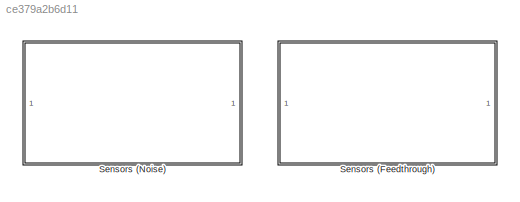
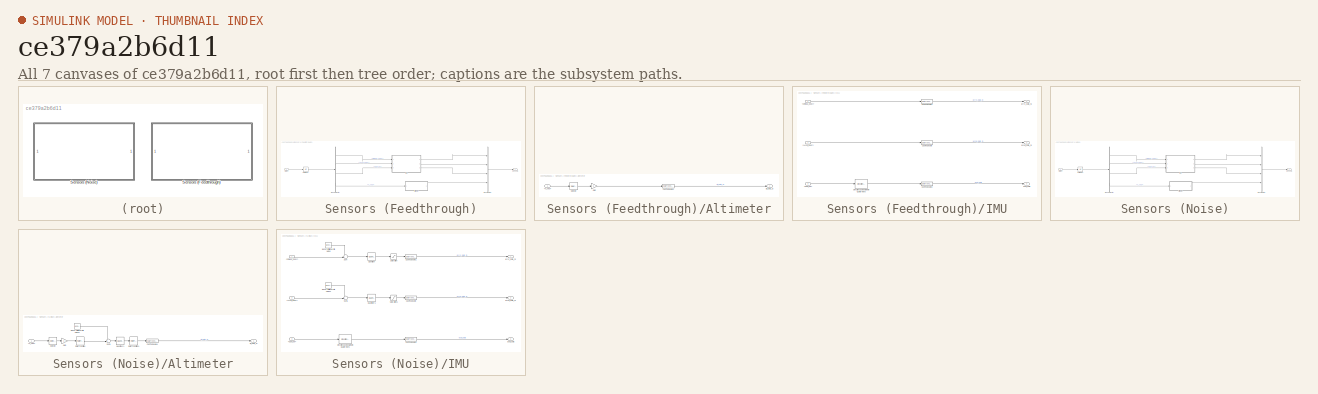
[diagram: thumbnail index - all 7 canvases of the model, root first then tree order]
MODEL slx_ce379a2b6d11
KIND library
CONFIG AbsTol = auto
CONFIG EnableMultiTasking = off
CONFIG FixedStep = auto
CONFIG MaxStep = auto
CONFIG MinStep = auto
CONFIG RelTol = 1e-3
CONFIG SampleTimeConstraint = Unconstrained
CONFIG SolverName = VariableStepAuto
CONFIG StartTime = 0.0
CONFIG StopTime = 10.0
BLOCK [SubSystem] Sensors (Feedthrough)
  Ports = [1, 1]
  RequestExecContextInheritance = off
BLOCK [SubSystem] Sensors (Feedthrough)/Altimeter
  Ports = [1, 1]
  RequestExecContextInheritance = off
BLOCK [Inport] Sensors (Feedthrough)/Altimeter/<X_ned>
BLOCK [DataTypeConversion] Sensors (Feedthrough)/Altimeter/Cast To Double4
  OutDataTypeStr = single
  RndMeth = Floor
  SaturateOnIntegerOverflow = off
BLOCK [Gain] Sensors (Feedthrough)/Altimeter/Gain
  Gain = -1
BLOCK [Selector] Sensors (Feedthrough)/Altimeter/Selector
  IndexOptions = Index vector (dialog)
  Indices = [3]
  InputPortWidth = 3
  OutputSizes = 1
  Ports = [1, 1]
BLOCK [Outport] Sensors (Feedthrough)/Altimeter/alt_data_SI
BLOCK [BusCreator] Sensors (Feedthrough)/Bus Creator
  DisplayOption = bar
  InheritFromInputs = on
  Inputs = 4
  OutDataTypeStr = Bus: sensor_data_t
  Ports = [4, 1]
BLOCK [BusSelector] Sensors (Feedthrough)/Bus Selector
  OutputSignals = Omega_body,Accel_body,DCM_be,X_ned
  Ports = [1, 4]
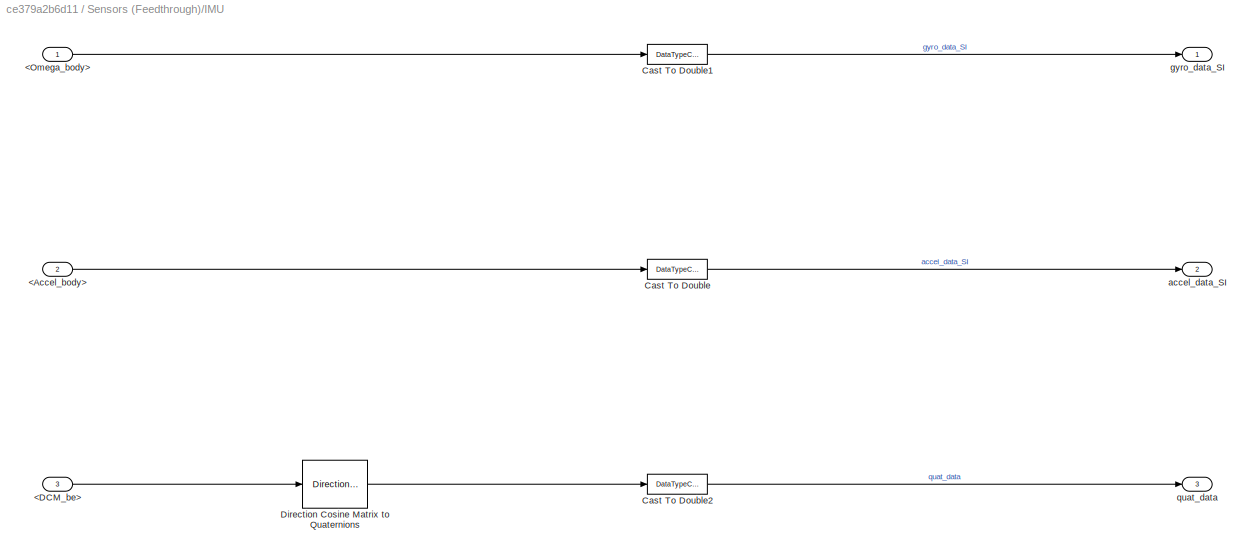
BLOCK [SubSystem] Sensors (Feedthrough)/IMU
  Ports = [3, 3]
  RequestExecContextInheritance = off
BLOCK [Inport] Sensors (Feedthrough)/IMU/<Accel_body>
  Port = 2
BLOCK [Inport] Sensors (Feedthrough)/IMU/<DCM_be>
  Port = 3
BLOCK [Inport] Sensors (Feedthrough)/IMU/<Omega_body>
BLOCK [DataTypeConversion] Sensors (Feedthrough)/IMU/Cast To Double
  OutDataTypeStr = single
  RndMeth = Floor
  SaturateOnIntegerOverflow = off
BLOCK [DataTypeConversion] Sensors (Feedthrough)/IMU/Cast To Double1
  OutDataTypeStr = single
  RndMeth = Floor
  SaturateOnIntegerOverflow = off
BLOCK [DataTypeConversion] Sensors (Feedthrough)/IMU/Cast To Double2
  OutDataTypeStr = single
  RndMeth = Floor
  SaturateOnIntegerOverflow = off
BLOCK [Reference] Sensors (Feedthrough)/IMU/Direction Cosine Matrix to Quaternions  REF=sharedtransform/Direction Cosine Matrix 
to Quaternions
  Ports = [1, 1]
  SourceBlock = sharedtransform/Direction Cosine Matrix \nto Quaternions
  SourceProductBaseCode = AE,PW,MT,UV,VE,VP
  SourceType = DCM2Quaternion
BLOCK [Outport] Sensors (Feedthrough)/IMU/accel_data_SI
  Port = 2
BLOCK [Outport] Sensors (Feedthrough)/IMU/gyro_data_SI
BLOCK [Outport] Sensors (Feedthrough)/IMU/quat_data
  Port = 3
BLOCK [Outport] Sensors (Feedthrough)/Sensors
  OutDataTypeStr = Bus: sensor_data_t
BLOCK [Inport] Sensors (Feedthrough)/States
  OutDataTypeStr = Bus: StatesBus
BLOCK [UnitDelay] Sensors (Feedthrough)/Unit Delay
  HasFrameUpgradeWarning = on
  SampleTime = -1
BLOCK [SubSystem] Sensors (Noise)
  Ports = [1, 1]
  RequestExecContextInheritance = off
BLOCK [SubSystem] Sensors (Noise)/Altimeter
  Ports = [1, 1]
  RequestExecContextInheritance = off
BLOCK [Inport] Sensors (Noise)/Altimeter/<X_ned>
BLOCK [Reference] Sensors (Noise)/Altimeter/Band-Limited White Noise1  REF=simulink/Sources/Band-Limited
White Noise
  Ports = [0, 1]
  SourceBlock = simulink/Sources/Band-Limited\nWhite Noise
  SourceProductBaseCode = SL
  SourceType = Band-Limited White Noise.
BLOCK [DataTypeConversion] Sensors (Noise)/Altimeter/Cast To Double4
  OutDataTypeStr = single
  RndMeth = Floor
  SaturateOnIntegerOverflow = off
BLOCK [Gain] Sensors (Noise)/Altimeter/Gain
  Gain = -1
BLOCK [Quantizer] Sensors (Noise)/Altimeter/Quantizer1
  LinearizeAsGain = off
  QuantizationInterval = Sensors.Altimeter.Sens
BLOCK [RateTransition] Sensors (Noise)/Altimeter/Rate Transition
  OutPortSampleTime = 1/Sensors.Altimeter.Fs
BLOCK [RateTransition] Sensors (Noise)/Altimeter/Rate Transition1
  OutPortSampleTime = Ts
BLOCK [Selector] Sensors (Noise)/Altimeter/Selector
  IndexOptions = Index vector (dialog)
  Indices = [3]
  InputPortWidth = 3
  OutputSizes = 1
  Ports = [1, 1]
BLOCK [Sum] Sensors (Noise)/Altimeter/Sum1
  Inputs = ++|
  Ports = [2, 1]
BLOCK [Outport] Sensors (Noise)/Altimeter/alt_data_SI
BLOCK [BusCreator] Sensors (Noise)/Bus Creator
  DisplayOption = bar
  InheritFromInputs = on
  Inputs = 4
  OutDataTypeStr = Bus: sensor_data_t
  Ports = [4, 1]
BLOCK [BusSelector] Sensors (Noise)/Bus Selector
  OutputSignals = Omega_body,Accel_body,DCM_be,X_ned
  Ports = [1, 4]
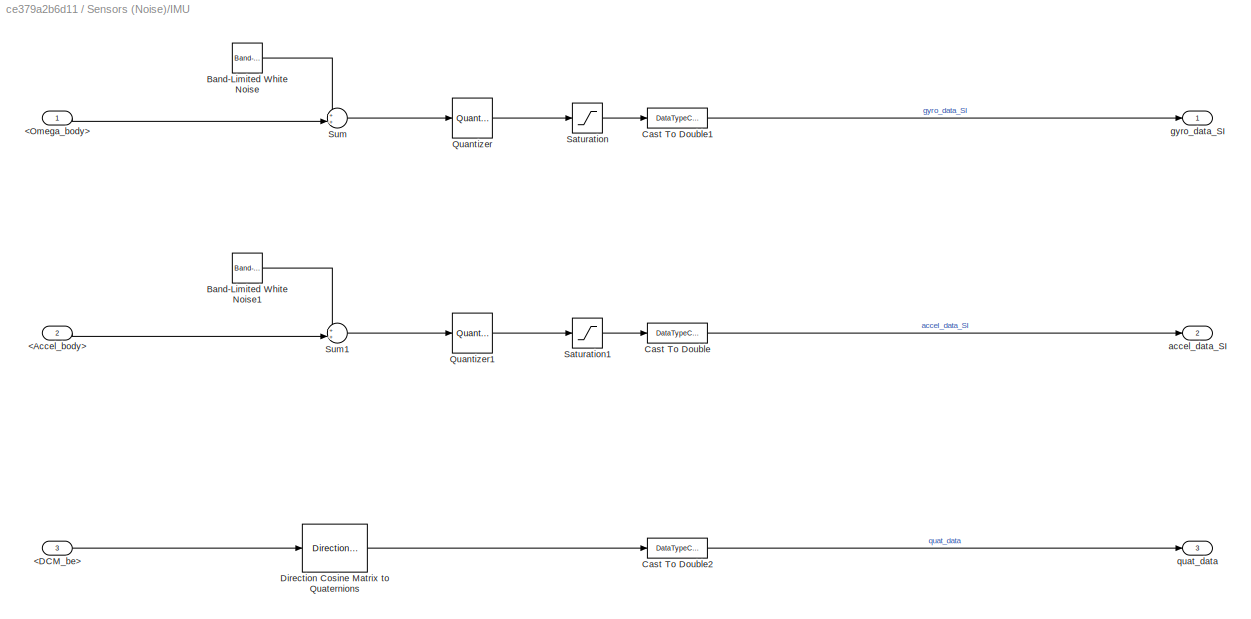
BLOCK [SubSystem] Sensors (Noise)/IMU
  Ports = [3, 3]
  RequestExecContextInheritance = off
BLOCK [Inport] Sensors (Noise)/IMU/<Accel_body>
  Port = 2
BLOCK [Inport] Sensors (Noise)/IMU/<DCM_be>
  Port = 3
BLOCK [Inport] Sensors (Noise)/IMU/<Omega_body>
BLOCK [Reference] Sensors (Noise)/IMU/Band-Limited White Noise  REF=simulink/Sources/Band-Limited
White Noise
  Ports = [0, 1]
  SourceBlock = simulink/Sources/Band-Limited\nWhite Noise
  SourceProductBaseCode = SL
  SourceType = Band-Limited White Noise.
BLOCK [Reference] Sensors (Noise)/IMU/Band-Limited White Noise1  REF=simulink/Sources/Band-Limited
White Noise
  Ports = [0, 1]
  SourceBlock = simulink/Sources/Band-Limited\nWhite Noise
  SourceProductBaseCode = SL
  SourceType = Band-Limited White Noise.
BLOCK [DataTypeConversion] Sensors (Noise)/IMU/Cast To Double
  OutDataTypeStr = single
  RndMeth = Floor
  SaturateOnIntegerOverflow = off
BLOCK [DataTypeConversion] Sensors (Noise)/IMU/Cast To Double1
  OutDataTypeStr = single
  RndMeth = Floor
  SaturateOnIntegerOverflow = off
BLOCK [DataTypeConversion] Sensors (Noise)/IMU/Cast To Double2
  OutDataTypeStr = single
  RndMeth = Floor
  SaturateOnIntegerOverflow = off
BLOCK [Reference] Sensors (Noise)/IMU/Direction Cosine Matrix to Quaternions  REF=sharedtransform/Direction Cosine Matrix 
to Quaternions
  Ports = [1, 1]
  SourceBlock = sharedtransform/Direction Cosine Matrix \nto Quaternions
  SourceProductBaseCode = AE,PW,MT,UV,VE,VP
  SourceType = DCM2Quaternion
BLOCK [Quantizer] Sensors (Noise)/IMU/Quantizer
  LinearizeAsGain = off
  QuantizationInterval = Sensors.IMU.Gyro.Sens
BLOCK [Quantizer] Sensors (Noise)/IMU/Quantizer1
  LinearizeAsGain = off
  QuantizationInterval = Sensors.IMU.Accel.Sens
BLOCK [Saturate] Sensors (Noise)/IMU/Saturation
  LowerLimit = -Sensors.IMU.Gyro.FSR
  UpperLimit = Sensors.IMU.Gyro.FSR
BLOCK [Saturate] Sensors (Noise)/IMU/Saturation1
  LowerLimit = -Sensors.IMU.Accel.FSR
  UpperLimit = Sensors.IMU.Accel.FSR
BLOCK [Sum] Sensors (Noise)/IMU/Sum
  Inputs = ++|
  Ports = [2, 1]
BLOCK [Sum] Sensors (Noise)/IMU/Sum1
  Inputs = ++|
  Ports = [2, 1]
BLOCK [Outport] Sensors (Noise)/IMU/accel_data_SI
  Port = 2
BLOCK [Outport] Sensors (Noise)/IMU/gyro_data_SI
BLOCK [Outport] Sensors (Noise)/IMU/quat_data
  Port = 3
BLOCK [Outport] Sensors (Noise)/Sensors
  OutDataTypeStr = Bus: sensor_data_t
BLOCK [Inport] Sensors (Noise)/States
  OutDataTypeStr = Bus: StatesBus
BLOCK [UnitDelay] Sensors (Noise)/Unit Delay
  HasFrameUpgradeWarning = on
  SampleTime = -1
LINE Sensors (Feedthrough)/Altimeter/<X_ned>:1 -> Sensors (Feedthrough)/Altimeter/Selector:1
LINE Sensors (Feedthrough)/Altimeter/Cast To Double4:1 -> Sensors (Feedthrough)/Altimeter/alt_data_SI:1
LINE Sensors (Feedthrough)/Altimeter/Gain:1 -> Sensors (Feedthrough)/Altimeter/Cast To Double4:1
LINE Sensors (Feedthrough)/Altimeter/Selector:1 -> Sensors (Feedthrough)/Altimeter/Gain:1
LINE Sensors (Feedthrough)/Altimeter:1 -> Sensors (Feedthrough)/Bus Creator:4
LINE Sensors (Feedthrough)/Bus Creator:1 -> Sensors (Feedthrough)/Sensors:1
LINE Sensors (Feedthrough)/Bus Selector:1 -> Sensors (Feedthrough)/IMU:1
LINE Sensors (Feedthrough)/Bus Selector:2 -> Sensors (Feedthrough)/IMU:2
LINE Sensors (Feedthrough)/Bus Selector:3 -> Sensors (Feedthrough)/IMU:3
LINE Sensors (Feedthrough)/Bus Selector:4 -> Sensors (Feedthrough)/Altimeter:1
LINE Sensors (Feedthrough)/IMU/<Accel_body>:1 -> Sensors (Feedthrough)/IMU/Cast To Double:1
LINE Sensors (Feedthrough)/IMU/<DCM_be>:1 -> Sensors (Feedthrough)/IMU/Direction Cosine Matrix to Quaternions:1
LINE Sensors (Feedthrough)/IMU/<Omega_body>:1 -> Sensors (Feedthrough)/IMU/Cast To Double1:1
LINE Sensors (Feedthrough)/IMU/Cast To Double1:1 -> Sensors (Feedthrough)/IMU/gyro_data_SI:1
LINE Sensors (Feedthrough)/IMU/Cast To Double2:1 -> Sensors (Feedthrough)/IMU/quat_data:1
LINE Sensors (Feedthrough)/IMU/Cast To Double:1 -> Sensors (Feedthrough)/IMU/accel_data_SI:1
LINE Sensors (Feedthrough)/IMU/Direction Cosine Matrix to Quaternions:1 -> Sensors (Feedthrough)/IMU/Cast To Double2:1
LINE Sensors (Feedthrough)/IMU:1 -> Sensors (Feedthrough)/Bus Creator:1
LINE Sensors (Feedthrough)/IMU:2 -> Sensors (Feedthrough)/Bus Creator:2
LINE Sensors (Feedthrough)/IMU:3 -> Sensors (Feedthrough)/Bus Creator:3
LINE Sensors (Feedthrough)/States:1 -> Sensors (Feedthrough)/Unit Delay:1
LINE Sensors (Feedthrough)/Unit Delay:1 -> Sensors (Feedthrough)/Bus Selector:1
LINE Sensors (Noise)/Altimeter/<X_ned>:1 -> Sensors (Noise)/Altimeter/Selector:1
LINE Sensors (Noise)/Altimeter/Band-Limited White Noise1:1 -> Sensors (Noise)/Altimeter/Sum1:1
LINE Sensors (Noise)/Altimeter/Cast To Double4:1 -> Sensors (Noise)/Altimeter/alt_data_SI:1
LINE Sensors (Noise)/Altimeter/Gain:1 -> Sensors (Noise)/Altimeter/Rate Transition:1
LINE Sensors (Noise)/Altimeter/Quantizer1:1 -> Sensors (Noise)/Altimeter/Rate Transition1:1
LINE Sensors (Noise)/Altimeter/Rate Transition1:1 -> Sensors (Noise)/Altimeter/Cast To Double4:1
LINE Sensors (Noise)/Altimeter/Rate Transition:1 -> Sensors (Noise)/Altimeter/Sum1:2
LINE Sensors (Noise)/Altimeter/Selector:1 -> Sensors (Noise)/Altimeter/Gain:1
LINE Sensors (Noise)/Altimeter/Sum1:1 -> Sensors (Noise)/Altimeter/Quantizer1:1
LINE Sensors (Noise)/Altimeter:1 -> Sensors (Noise)/Bus Creator:4
LINE Sensors (Noise)/Bus Creator:1 -> Sensors (Noise)/Sensors:1
LINE Sensors (Noise)/Bus Selector:1 -> Sensors (Noise)/IMU:1
LINE Sensors (Noise)/Bus Selector:2 -> Sensors (Noise)/IMU:2
LINE Sensors (Noise)/Bus Selector:3 -> Sensors (Noise)/IMU:3
LINE Sensors (Noise)/Bus Selector:4 -> Sensors (Noise)/Altimeter:1
LINE Sensors (Noise)/IMU/<Accel_body>:1 -> Sensors (Noise)/IMU/Sum1:2
LINE Sensors (Noise)/IMU/<DCM_be>:1 -> Sensors (Noise)/IMU/Direction Cosine Matrix to Quaternions:1
LINE Sensors (Noise)/IMU/<Omega_body>:1 -> Sensors (Noise)/IMU/Sum:2
LINE Sensors (Noise)/IMU/Band-Limited White Noise1:1 -> Sensors (Noise)/IMU/Sum1:1
LINE Sensors (Noise)/IMU/Band-Limited White Noise:1 -> Sensors (Noise)/IMU/Sum:1
LINE Sensors (Noise)/IMU/Cast To Double1:1 -> Sensors (Noise)/IMU/gyro_data_SI:1
LINE Sensors (Noise)/IMU/Cast To Double2:1 -> Sensors (Noise)/IMU/quat_data:1
LINE Sensors (Noise)/IMU/Cast To Double:1 -> Sensors (Noise)/IMU/accel_data_SI:1
LINE Sensors (Noise)/IMU/Direction Cosine Matrix to Quaternions:1 -> Sensors (Noise)/IMU/Cast To Double2:1
LINE Sensors (Noise)/IMU/Quantizer1:1 -> Sensors (Noise)/IMU/Saturation1:1
LINE Sensors (Noise)/IMU/Quantizer:1 -> Sensors (Noise)/IMU/Saturation:1
LINE Sensors (Noise)/IMU/Saturation1:1 -> Sensors (Noise)/IMU/Cast To Double:1
LINE Sensors (Noise)/IMU/Saturation:1 -> Sensors (Noise)/IMU/Cast To Double1:1
LINE Sensors (Noise)/IMU/Sum1:1 -> Sensors (Noise)/IMU/Quantizer1:1
LINE Sensors (Noise)/IMU/Sum:1 -> Sensors (Noise)/IMU/Quantizer:1
LINE Sensors (Noise)/IMU:1 -> Sensors (Noise)/Bus Creator:1
LINE Sensors (Noise)/IMU:2 -> Sensors (Noise)/Bus Creator:2
LINE Sensors (Noise)/IMU:3 -> Sensors (Noise)/Bus Creator:3
LINE Sensors (Noise)/States:1 -> Sensors (Noise)/Unit Delay:1
LINE Sensors (Noise)/Unit Delay:1 -> Sensors (Noise)/Bus Selector:1
